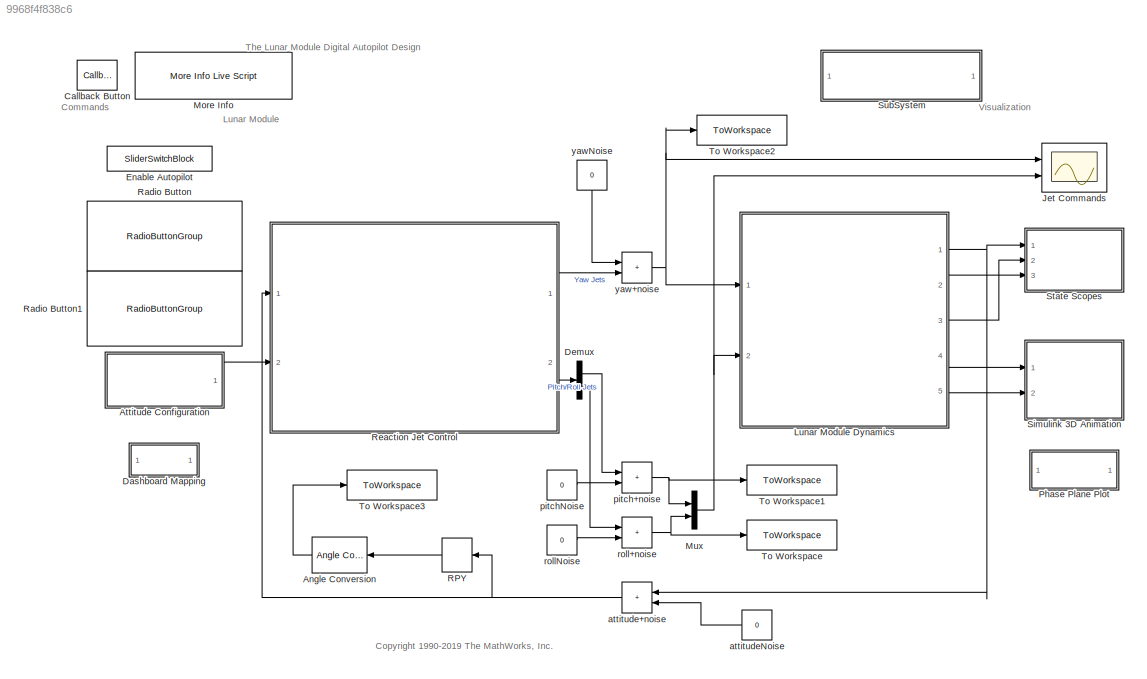
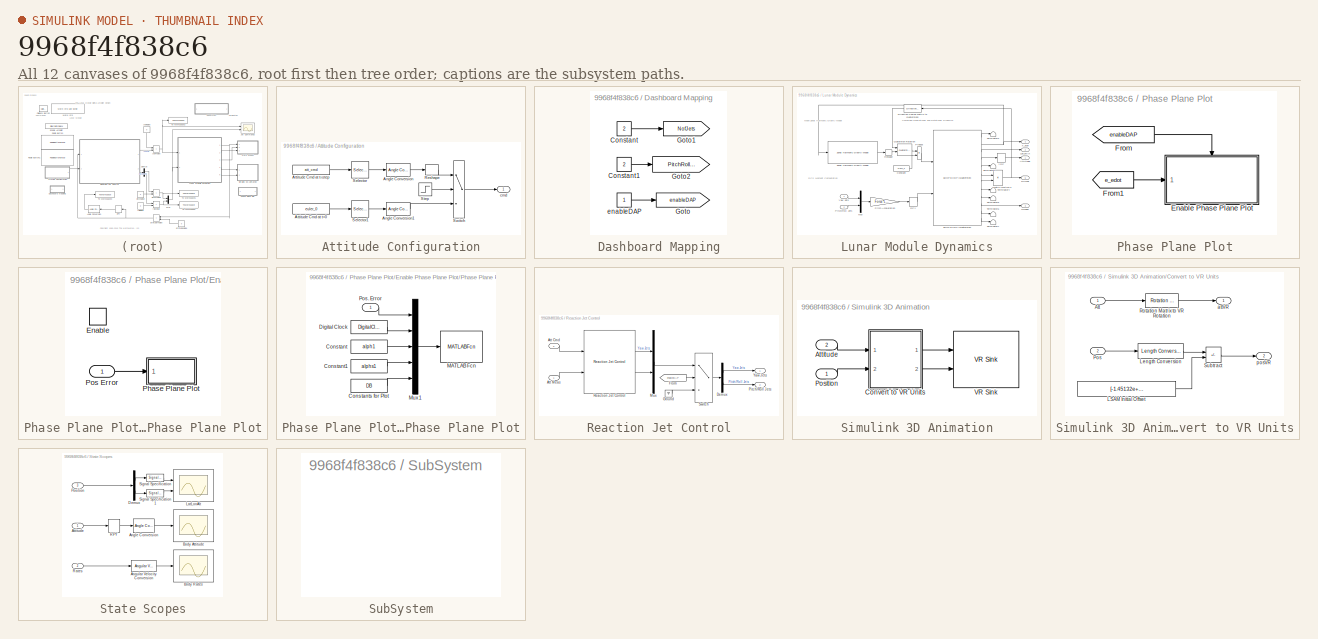
[diagram: thumbnail index - all 12 canvases of the model, root first then tree order]
MODEL slx_9968f4f838c6
KIND model
CONFIG AbsTol = 1e-6
CONFIG EnableMultiTasking = off
CONFIG FixedStep = clockt/4
CONFIG MaxStep = auto
CONFIG MinStep = auto
CONFIG PreLoadFcn = run('aero_dap3dofdata.m');\n
CONFIG RelTol = 1e-3
CONFIG SampleTimeConstraint = Unconstrained
CONFIG SolverName = ode45
CONFIG StartTime = 0
CONFIG StopTime = t_runtime
BLOCK [Reference] Angle Conversion  REF=aerolibconvert2/Angle Conversion
  NameLocation = top
  Ports = [1, 1]
  SourceBlock = aerolibconvert2/Angle Conversion
  SourceProductBaseCode = AE
  SourceType = Angle Conversion
BLOCK [SubSystem] Attitude Configuration
  AttributesFormatString = (Double-click)
  Ports = [0, 1]
  RequestExecContextInheritance = off
BLOCK [Reference] Attitude Configuration/Angle Conversion  REF=aerolibconvert2/Angle Conversion
  Ports = [1, 1]
  SourceBlock = aerolibconvert2/Angle Conversion
  SourceProductBaseCode = AE
  SourceType = Angle Conversion
BLOCK [Reference] Attitude Configuration/Angle Conversion1  REF=aerolibconvert2/Angle Conversion
  Ports = [1, 1]
  SourceBlock = aerolibconvert2/Angle Conversion
  SourceProductBaseCode = AE
  SourceType = Angle Conversion
BLOCK [Constant] Attitude Configuration/Attitude Cmd at t=0
  Value = euler_0
  VectorParams1D = off
BLOCK [Constant] Attitude Configuration/Attitude Cmd at t=step
  NameLocation = top
  Value = att_cmd
  VectorParams1D = off
BLOCK [Reshape] Attitude Configuration/Reshape
  Ports = [1, 1]
BLOCK [Selector] Attitude Configuration/Selector
  IndexOptions = Index vector (dialog)
  Indices = [3 1 2]
  InputPortWidth = 3
  OutputSizes = 1
  Ports = [1, 1]
BLOCK [Selector] Attitude Configuration/Selector1
  IndexOptions = Index vector (dialog)
  Indices = [3 1 2]
  InputPortWidth = 3
  OutputSizes = 1
  Ports = [1, 1]
BLOCK [Step] Attitude Configuration/Step
  SampleTime = 0
  Time = .25
BLOCK [Switch] Attitude Configuration/Switch
  Threshold = 0.5
BLOCK [Outport] Attitude Configuration/cmd
  VectorParamsAs1DForOutWhenUnconnected = off
BLOCK [CallbackButton] Callback Button
  ButtonText = ?
  ClickFcn = showExample('simulink_aerospace/DevelopingTheApolloLunarModuleDigitalAutopilotExample')
BLOCK [SubSystem] Dashboard Mapping
  Ports = []
  RequestExecContextInheritance = off
BLOCK [Constant] Dashboard Mapping/Constant
  Value = 2
BLOCK [Constant] Dashboard Mapping/Constant1
  Value = 2
BLOCK [Goto] Dashboard Mapping/Goto
  GotoTag = enableDAP
  TagVisibility = global
BLOCK [Goto] Dashboard Mapping/Goto1
  GotoTag = NofJets
  TagVisibility = global
BLOCK [Goto] Dashboard Mapping/Goto2
  GotoTag = PitchRollJets
  TagVisibility = global
BLOCK [Constant] Dashboard Mapping/enableDAP
BLOCK [Demux] Demux
  Outputs = 2
  Ports = [1, 2]
BLOCK [SliderSwitchBlock] Enable Autopilot
  LabelPosition = Hide
BLOCK [Scope] Jet Commands
  Floating = off
  NumInputPorts = 2
  Ports = [2]
  ScopeSpecificationString = Simulink.scopes.TimeScopeBlockCfg('CurrentConfiguration', extmgr.ConfigurationSet(extmgr.Configuration('Core','General UI',true),extmgr.Configuration('Core','Source UI',true),extmgr.Configuration('Sources','WiredSimulink',true,'DataLoggingMaxPoints','10000','DataLoggingSaveFormat','Array','DataLoggingDecimation','1','DataLoggingVariableName','ScopeData1'),extmgr.Configuration('Visuals','Time Domai...<+2651ch>
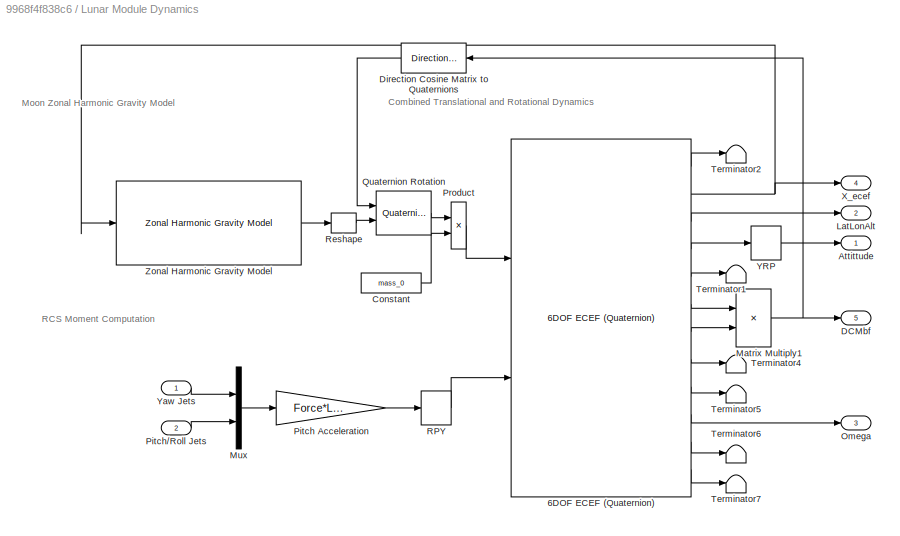
BLOCK [SubSystem] Lunar Module Dynamics
  Ports = [2, 5]
  RequestExecContextInheritance = off
BLOCK [Reference] Lunar Module Dynamics/6DOF ECEF (Quaternion)  REF=aerolib6dof2/6DOF ECEF (Quaternion)
  Ports = [2, 12]
  SourceBlock = aerolib6dof2/6DOF ECEF (Quaternion)
  SourceProductBaseCode = AE
  SourceType = 6DOF EoM (ECEF)
BLOCK [Outport] Lunar Module Dynamics/Attittude
  Unit = rad
  VectorParamsAs1DForOutWhenUnconnected = off
BLOCK [Constant] Lunar Module Dynamics/Constant
  Value = mass_0
BLOCK [Outport] Lunar Module Dynamics/DCMbf
  Port = 5
  VectorParamsAs1DForOutWhenUnconnected = off
BLOCK [Reference] Lunar Module Dynamics/Direction Cosine Matrix to Quaternions  REF=sharedtransform/Direction Cosine Matrix 
to Quaternions
  Ports = [1, 1]
  SourceBlock = sharedtransform/Direction Cosine Matrix \nto Quaternions
  SourceProductBaseCode = AE,PW,DR,MT,UV,VE
  SourceType = DCM2Quaternion
BLOCK [Outport] Lunar Module Dynamics/LatLonAlt
  Port = 2
  VectorParamsAs1DForOutWhenUnconnected = off
BLOCK [Product] Lunar Module Dynamics/Matrix Multiply1
  Multiplication = Matrix(*)
  Ports = [2, 1]
BLOCK [Mux] Lunar Module Dynamics/Mux
  Inputs = 2
  Ports = [2, 1]
BLOCK [Outport] Lunar Module Dynamics/Omega
  Port = 3
  Unit = rad/s
  VectorParamsAs1DForOutWhenUnconnected = off
BLOCK [Gain] Lunar Module Dynamics/Pitch Acceleration
  Gain = Force*L_arm
  NameLocation = top
  OutDataTypeStr = Inherit: Same as input
  ParamDataTypeStr = Inherit: Same as input
  SaturateOnIntegerOverflow = on
BLOCK [Inport] Lunar Module Dynamics/Pitch//Roll Jets
  Port = 2
  Unit = lbf
BLOCK [Product] Lunar Module Dynamics/Product
  Ports = [2, 1]
BLOCK [Reference] Lunar Module Dynamics/Quaternion Rotation  REF=aerolibutil/Quaternion
Rotation
  Ports = [2, 1]
  SourceBlock = aerolibutil/Quaternion\nRotation
  SourceProductBaseCode = AE
  SourceType = Quaternion Rotation
BLOCK [Selector] Lunar Module Dynamics/RPY
  IndexOptions = Index vector (dialog)
  Indices = [2 3 1]
  InputPortWidth = 3
  OutputSizes = 1
  Ports = [1, 1]
BLOCK [Reshape] Lunar Module Dynamics/Reshape
  Ports = [1, 1]
BLOCK [Terminator] Lunar Module Dynamics/Terminator1
BLOCK [Terminator] Lunar Module Dynamics/Terminator2
BLOCK [Terminator] Lunar Module Dynamics/Terminator4
BLOCK [Terminator] Lunar Module Dynamics/Terminator5
BLOCK [Terminator] Lunar Module Dynamics/Terminator6
BLOCK [Terminator] Lunar Module Dynamics/Terminator7
BLOCK [Outport] Lunar Module Dynamics/X_ecef
  Port = 4
  Unit = ft
  VectorParamsAs1DForOutWhenUnconnected = off
BLOCK [Selector] Lunar Module Dynamics/YRP
  IndexOptions = Index vector (dialog)
  Indices = [3 1 2]
  InputPortWidth = 3
  OutputSizes = 1
  Ports = [1, 1]
BLOCK [Inport] Lunar Module Dynamics/Yaw Jets
  Unit = lbf
BLOCK [Reference] Lunar Module Dynamics/Zonal Harmonic Gravity Model  REF=aerolibgravity2/Zonal Harmonic Gravity Model
  Ports = [1, 1]
  SourceBlock = aerolibgravity2/Zonal Harmonic Gravity Model
  SourceProductBaseCode = AE
  SourceType = Zonal Harmonic Gravity Model
BLOCK [Reference] More Info  REF=aero_libdap/More Info Live Script  (lib defined in mdl_b19959723b40, slx_4c0f97724d47, +1 more)
  Ports = []
  SourceBlock = aero_libdap/More Info Live Script
  SourceProductBaseCode = SL
BLOCK [Mux] Mux
  DisplayOption = bar
  Inputs = 2
  Ports = [2, 1]
BLOCK [SubSystem] Phase Plane Plot
  AttributesFormatString = (Double-click)
  OpenFcn = if ~builtin('license','test','virtual_reality_toolbox')\n    set_param(gcb, 'enableVis', 'off');\nend\nopen_system(gcb,'mask');
  Ports = []
  RequestExecContextInheritance = off
BLOCK [SubSystem] Phase Plane Plot/Enable Phase Plane Plot
  Ports = [1, 0, 1]
  RequestExecContextInheritance = off
BLOCK [EnablePort] Phase Plane Plot/Enable Phase Plane Plot/Enable
  Ports = []
  StatesWhenEnabling = reset
BLOCK [SubSystem] Phase Plane Plot/Enable Phase Plane Plot/Phase Plane Plot
  Ports = [1]
  RequestExecContextInheritance = off
BLOCK [Constant] Phase Plane Plot/Enable Phase Plane Plot/Phase Plane Plot/Constant
  Value = alph1
BLOCK [Constant] Phase Plane Plot/Enable Phase Plane Plot/Phase Plane Plot/Constant1
  Value = alphs1
BLOCK [Constant] Phase Plane Plot/Enable Phase Plane Plot/Phase Plane Plot/Constants for Plot
  Value = DB
BLOCK [DigitalClock] Phase Plane Plot/Enable Phase Plane Plot/Phase Plane Plot/Digital Clock
  SampleTime = delt
BLOCK [MATLABFcn] Phase Plane Plot/Enable Phase Plane Plot/Phase Plane Plot/MATLAB Fcn
  MATLABFcn = aero_phaseplane
  OutputDimensions = 0
  Ports = [1]
BLOCK [Mux] Phase Plane Plot/Enable Phase Plane Plot/Phase Plane Plot/Mux1
  DisplayOption = bar
  Inputs = 5
  Ports = [5, 1]
BLOCK [Inport] Phase Plane Plot/Enable Phase Plane Plot/Phase Plane Plot/Pos. Error
  NameLocation = top
BLOCK [Inport] Phase Plane Plot/Enable Phase Plane Plot/Pos Error
BLOCK [From] Phase Plane Plot/From
  GotoTag = enableDAP
  TagVisibility = global
BLOCK [From] Phase Plane Plot/From1
  GotoTag = e_edot
  TagVisibility = global
BLOCK [Selector] RPY
  IndexOptions = Index vector (dialog)
  Indices = [2 3 1]
  InputPortWidth = 3
  NameLocation = top
  OutputSizes = 1
  Ports = [1, 1]
BLOCK [RadioButtonGroup] Radio Button
  ButtonGroupName = Number of Jets
  LabelPosition = Hide
  SelectedLabel = Two Jet
BLOCK [RadioButtonGroup] Radio Button1
  ButtonGroupName = Pitch Roll Jets
  LabelPosition = Hide
  SelectedLabel = Nominal Two Jet Couples
BLOCK [SubSystem] Reaction Jet Control
  Ports = [2, 2]
  RequestExecContextInheritance = off
BLOCK [Inport] Reaction Jet Control/Att Cmd
  Port = 2
BLOCK [Inport] Reaction Jet Control/Att Meas
BLOCK [Demux] Reaction Jet Control/Demux
  Outputs = [1 2]
  Ports = [1, 2]
BLOCK [From] Reaction Jet Control/From
  GotoTag = enableDAP
  TagVisibility = global
BLOCK [Ground] Reaction Jet Control/Ground
BLOCK [Mux] Reaction Jet Control/Mux
  DisplayOption = bar
  Inputs = 2
  Ports = [2, 1]
BLOCK [Outport] Reaction Jet Control/Pitch//Roll Jets
  Port = 2
  VectorParamsAs1DForOutWhenUnconnected = off
BLOCK [Reference] Reaction Jet Control/Reaction Jet Control  REF=aero_librcs/Reaction Jet Control  (lib defined in mdl_9bcb976a70be, slx_591c873b27bf)
  Ports = [2, 2]
  SourceBlock = aero_librcs/Reaction Jet Control
  SourceProductBaseCode = SL
  SourceType = SubSystem
BLOCK [Switch] Reaction Jet Control/Switch
  Criteria = u2 ~= 0
  InputSameDT = off
  SaturateOnIntegerOverflow = off
BLOCK [Outport] Reaction Jet Control/Yaw Jets
  VectorParamsAs1DForOutWhenUnconnected = off
BLOCK [SubSystem] Simulink 3D Animation
  OpenFcn = if ~builtin('license','test','virtual_reality_toolbox')\n    set_param(gcb, 'enableVis', 'off');\nend\nopen_system(gcb,'mask');
  Ports = [2]
  RequestExecContextInheritance = off
BLOCK [Inport] Simulink 3D Animation/Attitude
  Port = 2
BLOCK [SubSystem] Simulink 3D Animation/Convert to VR Units
  Ports = [2, 2]
  RequestExecContextInheritance = off
BLOCK [Inport] Simulink 3D Animation/Convert to VR Units/Att
BLOCK [Constant] Simulink 3D Animation/Convert to VR Units/LSAM Initial Offset 
  Value = [-1.45132e+06 -1.13879e+06 -37269.6]
BLOCK [Reference] Simulink 3D Animation/Convert to VR Units/Length Conversion  REF=aerolibconvert2/Length Conversion
  Ports = [1, 1]
  SourceBlock = aerolibconvert2/Length Conversion
  SourceProductBaseCode = AE
  SourceType = Length Conversion
BLOCK [Inport] Simulink 3D Animation/Convert to VR Units/Pos
  Port = 2
BLOCK [Reference] Simulink 3D Animation/Convert to VR Units/Rotation Matrix to VR Rotation  REF=vrlib/Utilities/Rotation Matrix
to VR Rotation
  Ports = [1, 1]
  SourceBlock = vrlib/Utilities/Rotation Matrix\nto VR Rotation
  SourceProductBaseCode = SL
  SourceType = Rotation Matrix to VR Rotation
BLOCK [Sum] Simulink 3D Animation/Convert to VR Units/Subtract
  IconShape = rectangular
  Inputs = +-
  Ports = [2, 1]
BLOCK [Outport] Simulink 3D Animation/Convert to VR Units/attVR
  VectorParamsAs1DForOutWhenUnconnected = off
BLOCK [Outport] Simulink 3D Animation/Convert to VR Units/posVR
  Port = 2
  VectorParamsAs1DForOutWhenUnconnected = off
BLOCK [Inport] Simulink 3D Animation/Position
BLOCK [Reference] Simulink 3D Animation/VR Sink  REF=vrlib/VR Sink
  InstantiateOnLoad = on
  Ports = [2]
  SourceBlock = vrlib/VR Sink
  SourceProductBaseCode = SL
  SourceType = Virtual Reality Sink
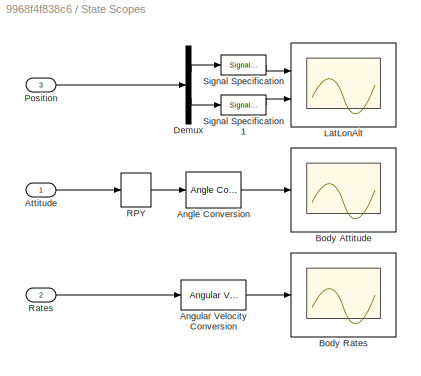
BLOCK [SubSystem] State Scopes
  Ports = [3]
  RequestExecContextInheritance = off
BLOCK [Reference] State Scopes/Angle Conversion  REF=aerolibconvert2/Angle Conversion
  Ports = [1, 1]
  SourceBlock = aerolibconvert2/Angle Conversion
  SourceProductBaseCode = AE
  SourceType = Angle Conversion
BLOCK [Reference] State Scopes/Angular Velocity Conversion  REF=aerolibconvert2/Angular Velocity
Conversion
  Ports = [1, 1]
  SourceBlock = aerolibconvert2/Angular Velocity\nConversion
  SourceProductBaseCode = AE
  SourceType = Angular Velocity Conversion
BLOCK [Inport] State Scopes/Attitude
BLOCK [Scope] State Scopes/Body Attitude
  Floating = off
  NumInputPorts = 1
  Ports = [1]
  ScopeSpecificationString = Simulink.scopes.TimeScopeBlockCfg('CurrentConfiguration', extmgr.ConfigurationSet(extmgr.Configuration('Core','General UI',true),extmgr.Configuration('Core','Source UI',true),extmgr.Configuration('Sources','WiredSimulink',true,'PointsPerSignal',125000,'DataLoggingDecimation','1','DataLoggingSaveFormat','StructureWithTime'),extmgr.Configuration('Visuals','Time Domain',true,'SerializedDisplays',{str...<+1695ch>
BLOCK [Scope] State Scopes/Body Rates
  Floating = off
  NumInputPorts = 1
  Ports = [1]
  ScopeSpecificationString = Simulink.scopes.TimeScopeBlockCfg('CurrentConfiguration', extmgr.ConfigurationSet(extmgr.Configuration('Core','General UI',true),extmgr.Configuration('Core','Source UI',true),extmgr.Configuration('Sources','WiredSimulink',true,'PointsPerSignal',125000,'DataLoggingDecimation','1','DataLoggingSaveFormat','StructureWithTime'),extmgr.Configuration('Visuals','Time Domain',true,'SerializedDisplays',{str...<+1726ch>
BLOCK [Demux] State Scopes/Demux
  Outputs = [2 1]
  Ports = [1, 2]
BLOCK [Scope] State Scopes/LatLonAlt
  Floating = off
  NumInputPorts = 2
  Ports = [2]
  ScopeSpecificationString = Simulink.scopes.TimeScopeBlockCfg('CurrentConfiguration', extmgr.ConfigurationSet(extmgr.Configuration('Core','General UI',true),extmgr.Configuration('Core','Source UI',true),extmgr.Configuration('Sources','WiredSimulink',true,'DataLoggingVariableName','ScopeData2'),extmgr.Configuration('Visuals','Time Domain',true,'SerializedDisplays',{struct('MinYLimReal','-159.4708','MaxYLimReal','16.4372','YLa...<+2089ch>
BLOCK [Inport] State Scopes/Position
  Port = 3
BLOCK [Selector] State Scopes/RPY
  IndexOptions = Index vector (dialog)
  Indices = [2 3 1]
  InputPortWidth = 3
  OutputSizes = 1
  Ports = [1, 1]
BLOCK [Inport] State Scopes/Rates
  Port = 2
BLOCK [SignalSpecification] State Scopes/Signal Specification
  Unit = deg
BLOCK [SignalSpecification] State Scopes/Signal Specification1
  Unit = ft
BLOCK [SubSystem] SubSystem
  OpenFcn = web('https://www.mathworks.com/company/newsletters/articles/the-apollo-11-moon-landing-spacecraft-design-then-and-now.html')
  Ports = []
  RequestExecContextInheritance = off
BLOCK [ToWorkspace] To Workspace
  FixptAsFi = on
  MaxDataPoints = inf
  Ports = [1]
  SampleTime = -1
  SaveFormat = Structure With Time
  VariableName = roll
BLOCK [ToWorkspace] To Workspace1
  FixptAsFi = on
  MaxDataPoints = inf
  Ports = [1]
  SampleTime = -1
  SaveFormat = Structure With Time
  VariableName = pitch
BLOCK [ToWorkspace] To Workspace2
  FixptAsFi = on
  MaxDataPoints = inf
  Ports = [1]
  SampleTime = -1
  SaveFormat = Structure With Time
  VariableName = yaw
BLOCK [ToWorkspace] To Workspace3
  FixptAsFi = on
  MaxDataPoints = inf
  Ports = [1]
  SampleTime = -1
  SaveFormat = Structure With Time
  VariableName = attitude
BLOCK [Sum] attitude+noise
  IconShape = rectangular
  NameLocation = top
  Ports = [2, 1]
BLOCK [Constant] attitudeNoise
  NameLocation = top
  Value = 0
BLOCK [Sum] pitch+noise
  IconShape = rectangular
  Ports = [2, 1]
BLOCK [Constant] pitchNoise
  Value = 0
BLOCK [Sum] roll+noise
  IconShape = rectangular
  Ports = [2, 1]
BLOCK [Constant] rollNoise
  Value = 0
BLOCK [Sum] yaw+noise
  IconShape = rectangular
  Ports = [2, 1]
BLOCK [Constant] yawNoise
  NameLocation = left
  Value = 0
ANNOTATION (root): Commands
ANNOTATION (root): <copyright redacted>
ANNOTATION (root): Lunar Module
ANNOTATION (root): The Lunar Module Digital Autopilot Design
ANNOTATION (root): Visualization
ANNOTATION Lunar Module Dynamics: Combined Translational and Rotational Dynamics
ANNOTATION Lunar Module Dynamics: Moon Zonal Harmonic Gravity Model
ANNOTATION Lunar Module Dynamics: RCS Moment Computation
LINE Angle Conversion:1 -> To Workspace3:1
LINE Attitude Configuration/Angle Conversion1:1 -> Attitude Configuration/Switch:3
LINE Attitude Configuration/Angle Conversion:1 -> Attitude Configuration/Reshape:1
LINE Attitude Configuration/Attitude Cmd at t=0:1 -> Attitude Configuration/Selector1:1
LINE Attitude Configuration/Attitude Cmd at t=step:1 -> Attitude Configuration/Selector:1
LINE Attitude Configuration/Reshape:1 -> Attitude Configuration/Switch:1
LINE Attitude Configuration/Selector1:1 -> Attitude Configuration/Angle Conversion1:1
LINE Attitude Configuration/Selector:1 -> Attitude Configuration/Angle Conversion:1
LINE Attitude Configuration/Step:1 -> Attitude Configuration/Switch:2
LINE Attitude Configuration/Switch:1 -> Attitude Configuration/cmd:1
LINE Attitude Configuration:1 -> Reaction Jet Control:2
LINE Dashboard Mapping/Constant1:1 -> Dashboard Mapping/Goto2:1
LINE Dashboard Mapping/Constant:1 -> Dashboard Mapping/Goto1:1
LINE Dashboard Mapping/enableDAP:1 -> Dashboard Mapping/Goto:1
LINE Demux:1 -> pitch+noise:1
LINE Demux:2 -> roll+noise:1
LINE Lunar Module Dynamics/6DOF ECEF (Quaternion):1 -> Lunar Module Dynamics/Terminator2:1
LINE Lunar Module Dynamics/6DOF ECEF (Quaternion):10 -> Lunar Module Dynamics/Omega:1
LINE Lunar Module Dynamics/6DOF ECEF (Quaternion):11 -> Lunar Module Dynamics/Terminator6:1
LINE Lunar Module Dynamics/6DOF ECEF (Quaternion):12 -> Lunar Module Dynamics/Terminator7:1
NET Lunar Module Dynamics/6DOF ECEF (Quaternion):2 -> Lunar Module Dynamics/X_ecef:1, Lunar Module Dynamics/Zonal Harmonic Gravity Model:1
LINE Lunar Module Dynamics/6DOF ECEF (Quaternion):3 -> Lunar Module Dynamics/LatLonAlt:1
LINE Lunar Module Dynamics/6DOF ECEF (Quaternion):4 -> Lunar Module Dynamics/YRP:1
LINE Lunar Module Dynamics/6DOF ECEF (Quaternion):5 -> Lunar Module Dynamics/Terminator1:1
LINE Lunar Module Dynamics/6DOF ECEF (Quaternion):6 -> Lunar Module Dynamics/Matrix Multiply1:1
LINE Lunar Module Dynamics/6DOF ECEF (Quaternion):7 -> Lunar Module Dynamics/Matrix Multiply1:2
LINE Lunar Module Dynamics/6DOF ECEF (Quaternion):8 -> Lunar Module Dynamics/Terminator4:1
LINE Lunar Module Dynamics/6DOF ECEF (Quaternion):9 -> Lunar Module Dynamics/Terminator5:1
LINE Lunar Module Dynamics/Constant:1 -> Lunar Module Dynamics/Product:2
LINE Lunar Module Dynamics/Direction Cosine Matrix to Quaternions:1 -> Lunar Module Dynamics/Quaternion Rotation:1
NET Lunar Module Dynamics/Matrix Multiply1:1 -> Lunar Module Dynamics/DCMbf:1, Lunar Module Dynamics/Direction Cosine Matrix to Quaternions:1
LINE Lunar Module Dynamics/Mux:1 -> Lunar Module Dynamics/Pitch Acceleration:1
LINE Lunar Module Dynamics/Pitch Acceleration:1 -> Lunar Module Dynamics/RPY:1
LINE Lunar Module Dynamics/Pitch//Roll Jets:1 -> Lunar Module Dynamics/Mux:2
LINE Lunar Module Dynamics/Product:1 -> Lunar Module Dynamics/6DOF ECEF (Quaternion):1
LINE Lunar Module Dynamics/Quaternion Rotation:1 -> Lunar Module Dynamics/Product:1
LINE Lunar Module Dynamics/RPY:1 -> Lunar Module Dynamics/6DOF ECEF (Quaternion):2
LINE Lunar Module Dynamics/Reshape:1 -> Lunar Module Dynamics/Quaternion Rotation:2
LINE Lunar Module Dynamics/YRP:1 -> Lunar Module Dynamics/Attittude:1
LINE Lunar Module Dynamics/Yaw Jets:1 -> Lunar Module Dynamics/Mux:1
LINE Lunar Module Dynamics/Zonal Harmonic Gravity Model:1 -> Lunar Module Dynamics/Reshape:1
NET Lunar Module Dynamics:1 -> State Scopes:1, attitude+noise:1
LINE Lunar Module Dynamics:2 -> State Scopes:3
LINE Lunar Module Dynamics:3 -> State Scopes:2
LINE Lunar Module Dynamics:4 -> Simulink 3D Animation:1
LINE Lunar Module Dynamics:5 -> Simulink 3D Animation:2
NET Mux:1 -> Jet Commands:2, Lunar Module Dynamics:2
LINE Phase Plane Plot/Enable Phase Plane Plot/Phase Plane Plot/Constant1:1 -> Phase Plane Plot/Enable Phase Plane Plot/Phase Plane Plot/Mux1:4
LINE Phase Plane Plot/Enable Phase Plane Plot/Phase Plane Plot/Constant:1 -> Phase Plane Plot/Enable Phase Plane Plot/Phase Plane Plot/Mux1:3
LINE Phase Plane Plot/Enable Phase Plane Plot/Phase Plane Plot/Constants for Plot:1 -> Phase Plane Plot/Enable Phase Plane Plot/Phase Plane Plot/Mux1:5
LINE Phase Plane Plot/Enable Phase Plane Plot/Phase Plane Plot/Digital Clock:1 -> Phase Plane Plot/Enable Phase Plane Plot/Phase Plane Plot/Mux1:2
LINE Phase Plane Plot/Enable Phase Plane Plot/Phase Plane Plot/Mux1:1 -> Phase Plane Plot/Enable Phase Plane Plot/Phase Plane Plot/MATLAB Fcn:1
LINE Phase Plane Plot/Enable Phase Plane Plot/Phase Plane Plot/Pos. Error:1 -> Phase Plane Plot/Enable Phase Plane Plot/Phase Plane Plot/Mux1:1
LINE Phase Plane Plot/Enable Phase Plane Plot/Pos Error:1 -> Phase Plane Plot/Enable Phase Plane Plot/Phase Plane Plot:1
LINE Phase Plane Plot/From1:1 -> Phase Plane Plot/Enable Phase Plane Plot:1
LINE Phase Plane Plot/From:1 -> Phase Plane Plot/Enable Phase Plane Plot:enable
LINE RPY:1 -> Angle Conversion:1
LINE Reaction Jet Control/Att Cmd:1 -> Reaction Jet Control/Reaction Jet Control:1
LINE Reaction Jet Control/Att Meas:1 -> Reaction Jet Control/Reaction Jet Control:2
LINE Reaction Jet Control/Demux:1 -> Reaction Jet Control/Yaw Jets:1
LINE Reaction Jet Control/Demux:2 -> Reaction Jet Control/Pitch//Roll Jets:1
LINE Reaction Jet Control/From:1 -> Reaction Jet Control/Switch:2
LINE Reaction Jet Control/Ground:1 -> Reaction Jet Control/Switch:3
LINE Reaction Jet Control/Mux:1 -> Reaction Jet Control/Switch:1
LINE Reaction Jet Control/Reaction Jet Control:1 -> Reaction Jet Control/Mux:1
LINE Reaction Jet Control/Reaction Jet Control:2 -> Reaction Jet Control/Mux:2
LINE Reaction Jet Control/Switch:1 -> Reaction Jet Control/Demux:1
LINE Reaction Jet Control:1 -> yaw+noise:2
LINE Reaction Jet Control:2 -> Demux:1
LINE Simulink 3D Animation/Attitude:1 -> Simulink 3D Animation/Convert to VR Units:1
LINE Simulink 3D Animation/Convert to VR Units/Att:1 -> Simulink 3D Animation/Convert to VR Units/Rotation Matrix to VR Rotation:1
LINE Simulink 3D Animation/Convert to VR Units/LSAM Initial Offset :1 -> Simulink 3D Animation/Convert to VR Units/Subtract:2
LINE Simulink 3D Animation/Convert to VR Units/Length Conversion:1 -> Simulink 3D Animation/Convert to VR Units/Subtract:1
LINE Simulink 3D Animation/Convert to VR Units/Pos:1 -> Simulink 3D Animation/Convert to VR Units/Length Conversion:1
LINE Simulink 3D Animation/Convert to VR Units/Rotation Matrix to VR Rotation:1 -> Simulink 3D Animation/Convert to VR Units/attVR:1
LINE Simulink 3D Animation/Convert to VR Units/Subtract:1 -> Simulink 3D Animation/Convert to VR Units/posVR:1
LINE Simulink 3D Animation/Convert to VR Units:1 -> Simulink 3D Animation/VR Sink:1
LINE Simulink 3D Animation/Convert to VR Units:2 -> Simulink 3D Animation/VR Sink:2
LINE Simulink 3D Animation/Position:1 -> Simulink 3D Animation/Convert to VR Units:2
LINE State Scopes/Angle Conversion:1 -> State Scopes/Body Attitude:1
LINE State Scopes/Angular Velocity Conversion:1 -> State Scopes/Body Rates:1
LINE State Scopes/Attitude:1 -> State Scopes/RPY:1
LINE State Scopes/Demux:1 -> State Scopes/Signal Specification:1
LINE State Scopes/Demux:2 -> State Scopes/Signal Specification1:1
LINE State Scopes/Position:1 -> State Scopes/Demux:1
LINE State Scopes/RPY:1 -> State Scopes/Angle Conversion:1
LINE State Scopes/Rates:1 -> State Scopes/Angular Velocity Conversion:1
LINE State Scopes/Signal Specification1:1 -> State Scopes/LatLonAlt:2
LINE State Scopes/Signal Specification:1 -> State Scopes/LatLonAlt:1
NET attitude+noise:1 -> RPY:1, Reaction Jet Control:1
LINE attitudeNoise:1 -> attitude+noise:2
NET pitch+noise:1 -> Mux:1, To Workspace1:1
LINE pitchNoise:1 -> pitch+noise:2
NET roll+noise:1 -> Mux:2, To Workspace:1
LINE rollNoise:1 -> roll+noise:2
NET yaw+noise:1 -> Jet Commands:1, Lunar Module Dynamics:1, To Workspace2:1
LINE yawNoise:1 -> yaw+noise:1
note: NET lines group one-source signal fan-out (src -> all destinations, sorted); 1:1 wires keep LINE
